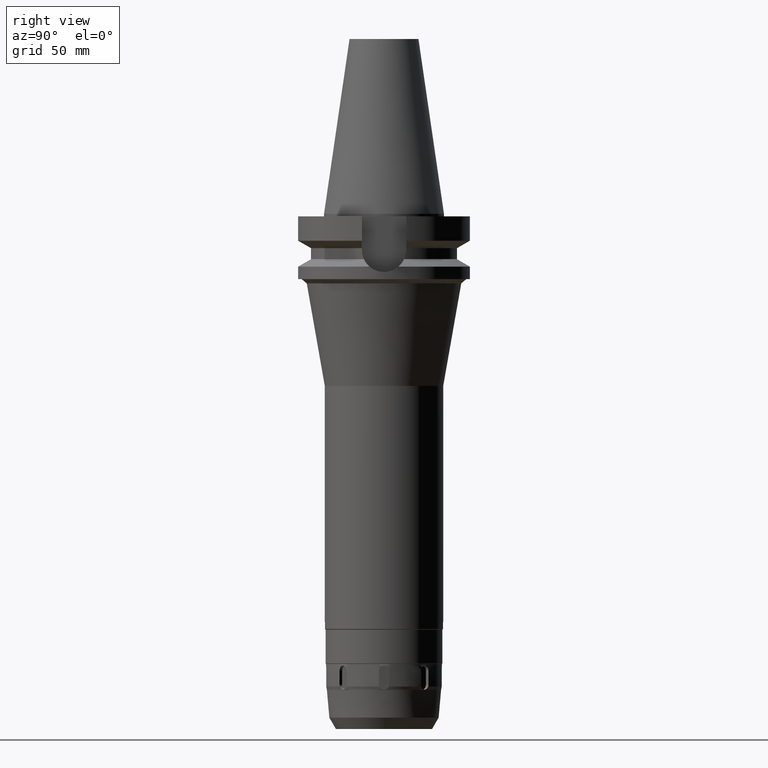
[diagram: clean part render]
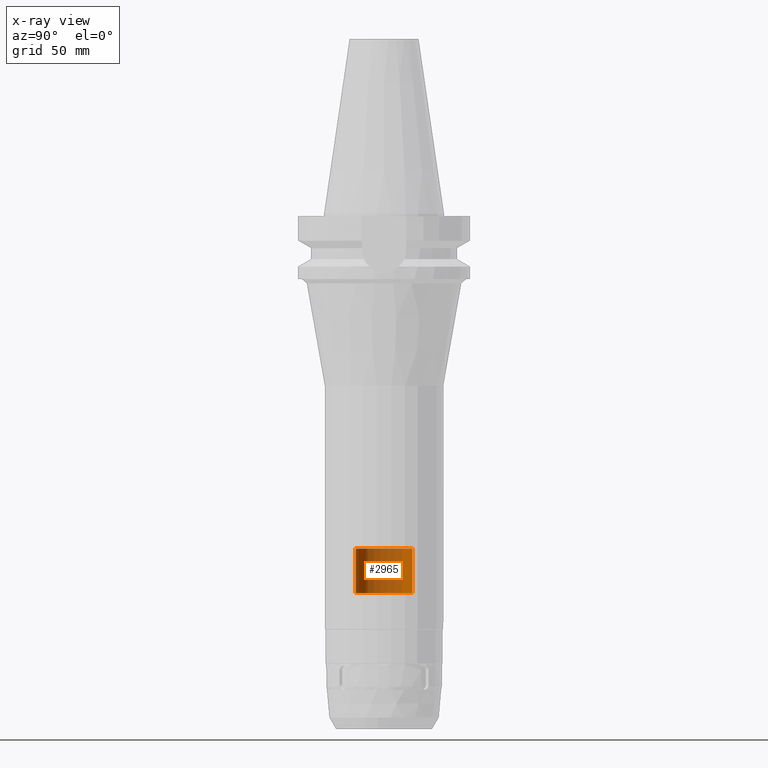
[diagram: x-ray — body ghosted, one internal face saturated and labeled with its STEP entity id]
A machine part, right view, then the same camera in x-ray: the body is ghosted and one INTERNAL B-rep face — a face not visible from any outside direction — is saturated and labeled: STEP entity #2965.
In plain terms, the highlighted cylindrical surface (edge-blend (fillet) strip) has radius 16.5 mm, axis along (0, 0, -1).
Its self-contained STEP definition (entity closure, byte-faithful):
#132=CARTESIAN_POINT('',(0.E0,2.717368782628E-14,-1.95E2));
#133=DIRECTION('',(0.E0,0.E0,1.E0));
#134=DIRECTION('',(0.E0,1.E0,0.E0));
#135=AXIS2_PLACEMENT_3D('',#132,#133,#134);
#156=DIRECTION('',(0.E0,0.E0,1.E0));
#157=VECTOR('',#156,2.6E1);
#158=CARTESIAN_POINT('',(0.E0,1.65E1,-2.21E2));
#159=LINE('',#158,#157);
#163=DIRECTION('',(0.E0,0.E0,1.E0));
#164=VECTOR('',#163,2.6E1);
#165=CARTESIAN_POINT('',(0.E0,-1.65E1,-2.21E2));
#166=LINE('',#165,#164);
#170=CARTESIAN_POINT('',(0.E0,2.717368782628E-14,-2.21E2));
#171=DIRECTION('',(0.E0,0.E0,-1.E0));
#172=DIRECTION('',(0.E0,-1.E0,0.E0));
#173=AXIS2_PLACEMENT_3D('',#170,#171,#172);
#2471=CARTESIAN_POINT('',(0.E0,-1.65E1,-1.95E2));
#2472=CARTESIAN_POINT('',(0.E0,1.65E1,-1.95E2));
#2473=VERTEX_POINT('',#2471);
#2474=VERTEX_POINT('',#2472);
#2475=CARTESIAN_POINT('',(0.E0,1.65E1,-2.21E2));
#2476=VERTEX_POINT('',#2475);
#2477=CARTESIAN_POINT('',(0.E0,-1.65E1,-2.21E2));
#2478=VERTEX_POINT('',#2477);
#2953=CARTESIAN_POINT('',(0.E0,2.717368782628E-14,1.2189E2));
#2954=DIRECTION('',(0.E0,0.E0,-1.E0));
#2955=DIRECTION('',(0.E0,-1.E0,0.E0));
#2956=AXIS2_PLACEMENT_3D('',#2953,#2954,#2955);
#2957=CYLINDRICAL_SURFACE('',#2956,1.65E1);
#2958=ORIENTED_EDGE('',*,*,#2943,.F.);
#2960=ORIENTED_EDGE('',*,*,#2959,.F.);
#2961=ORIENTED_EDGE('',*,*,#2946,.T.);
#2962=ORIENTED_EDGE('',*,*,#2929,.F.);
#2963=EDGE_LOOP('',(#2958,#2960,#2961,#2962));
#2964=FACE_OUTER_BOUND('',#2963,.F.);
#136=CIRCLE('',#135,1.65E1);
#174=CIRCLE('',#173,1.65E1);
#2929=EDGE_CURVE('',#2474,#2473,#136,.T.);
#2943=EDGE_CURVE('',#2476,#2474,#159,.T.);
#2946=EDGE_CURVE('',#2478,#2473,#166,.T.);
#2959=EDGE_CURVE('',#2478,#2476,#174,.T.);
#2965=ADVANCED_FACE('',(#2964),#2957,.F.);